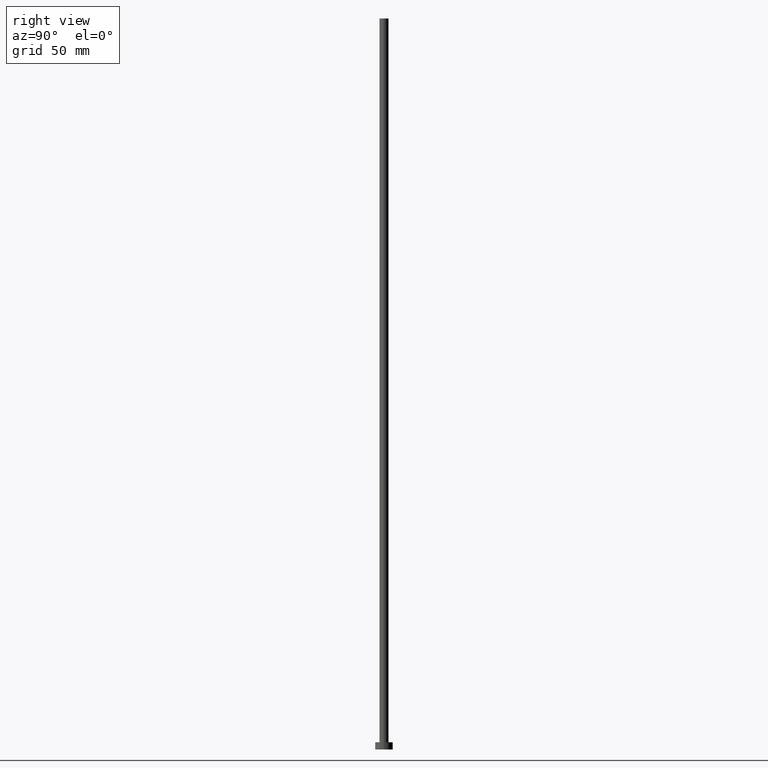
[diagram: clean part render]
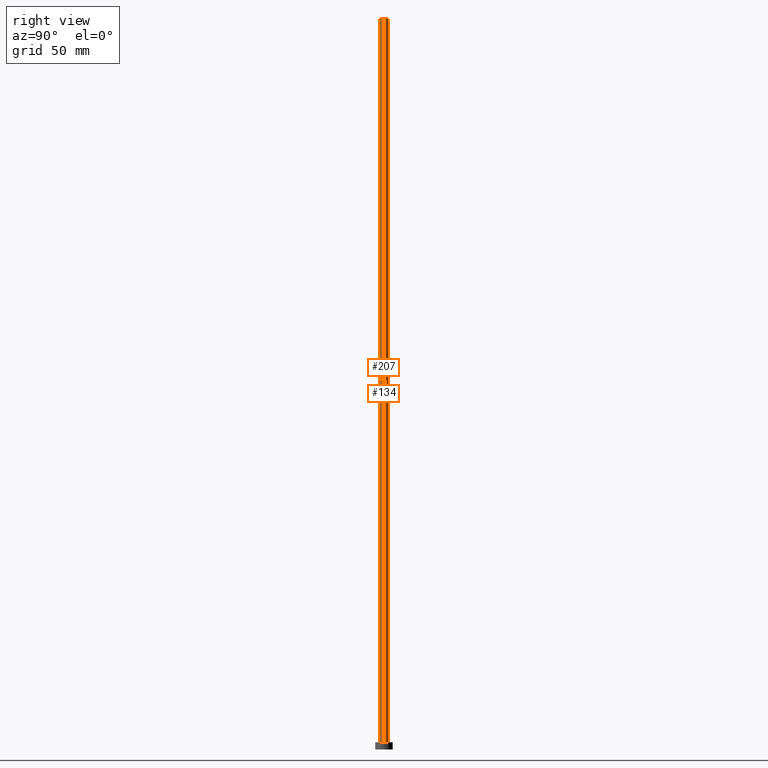
[diagram: same view with one multi-face feature highlighted, each face labeled with its STEP entity id]
A machine part, right view. The highlighted faces form ONE feature: a constant-radius fillet chain: 2 tangent blend faces with common blend radius 3.1 mm. The faces share edges in the B-rep.
Their STEP definitions:
[1] entity #134 (Cylinder):
#5 = EDGE_CURVE ( 'NONE', #193, #74, #104, .T. ) ;
#8 = DIRECTION ( 'NONE',  ( -0.000000000000000000, -0.000000000000000000, -1.000000000000000000 ) ) ;
#12 = AXIS2_PLACEMENT_3D ( 'NONE', #114, #54, #184 ) ;
#13 = CARTESIAN_POINT ( 'NONE',  ( 3.100000000000000089, 3.796405077356794918E-16, 500.0000000000000000 ) ) ;
#19 = ORIENTED_EDGE ( 'NONE', *, *, #117, .T. ) ;
#30 = VECTOR ( 'NONE', #8, 1000.000000000000000 ) ;
#43 = DIRECTION ( 'NONE',  ( -0.000000000000000000, -0.000000000000000000, -1.000000000000000000 ) ) ;
#54 = DIRECTION ( 'NONE',  ( 0.000000000000000000, 0.000000000000000000, 1.000000000000000000 ) ) ;
#55 = CIRCLE ( 'NONE', #12, 3.100000000000000089 ) ;
#63 = FACE_OUTER_BOUND ( 'NONE', #138, .T. ) ;
#64 = CARTESIAN_POINT ( 'NONE',  ( 3.100000000000000089, 3.796405077356794918E-16, 500.0000000000000000 ) ) ;
#73 = VECTOR ( 'NONE', #242, 1000.000000000000000 ) ;
#74 = VERTEX_POINT ( 'NONE', #238 ) ;
#77 = CARTESIAN_POINT ( 'NONE',  ( 0.000000000000000000, 0.000000000000000000, 500.0000000000000000 ) ) ;
#80 = LINE ( 'NONE', #115, #30 ) ;
#81 = CIRCLE ( 'NONE', #202, 3.100000000000000089 ) ;
#90 = CARTESIAN_POINT ( 'NONE',  ( 0.000000000000000000, 0.000000000000000000, 500.0000000000000000 ) ) ;
#96 = EDGE_CURVE ( 'NONE', #193, #208, #81, .T. ) ;
#104 = LINE ( 'NONE', #64, #73 ) ;
#106 = EDGE_CURVE ( 'NONE', #208, #119, #80, .T. ) ;
#112 = DIRECTION ( 'NONE',  ( 0.000000000000000000, 0.000000000000000000, 1.000000000000000000 ) ) ;
#114 = CARTESIAN_POINT ( 'NONE',  ( 0.000000000000000000, 0.000000000000000000, 5.000000000000000000 ) ) ;
#115 = CARTESIAN_POINT ( 'NONE',  ( -3.100000000000000089, 0.000000000000000000, 500.0000000000000000 ) ) ;
#117 = EDGE_CURVE ( 'NONE', #74, #119, #55, .T. ) ;
#119 = VERTEX_POINT ( 'NONE', #230 ) ;
#121 = CYLINDRICAL_SURFACE ( 'NONE', #149, 3.100000000000000089 ) ;
#134 = ADVANCED_FACE ( 'NONE', ( #63 ), #121, .T. ) ;
#138 = EDGE_LOOP ( 'NONE', ( #168, #195, #19, #140 ) ) ;
#140 = ORIENTED_EDGE ( 'NONE', *, *, #106, .F. ) ;
#149 = AXIS2_PLACEMENT_3D ( 'NONE', #77, #43, #159 ) ;
#159 = DIRECTION ( 'NONE',  ( -1.000000000000000000, 0.000000000000000000, 0.000000000000000000 ) ) ;
#168 = ORIENTED_EDGE ( 'NONE', *, *, #96, .F. ) ;
#176 = CARTESIAN_POINT ( 'NONE',  ( -3.100000000000000089, 0.000000000000000000, 500.0000000000000000 ) ) ;
#184 = DIRECTION ( 'NONE',  ( 1.000000000000000000, 0.000000000000000000, 0.000000000000000000 ) ) ;
#193 = VERTEX_POINT ( 'NONE', #13 ) ;
#195 = ORIENTED_EDGE ( 'NONE', *, *, #5, .T. ) ;
#202 = AXIS2_PLACEMENT_3D ( 'NONE', #90, #112, #222 ) ;
#208 = VERTEX_POINT ( 'NONE', #176 ) ;
#222 = DIRECTION ( 'NONE',  ( 1.000000000000000000, 0.000000000000000000, 0.000000000000000000 ) ) ;
#230 = CARTESIAN_POINT ( 'NONE',  ( -3.100000000000000089, 0.000000000000000000, 5.000000000000000000 ) ) ;
#238 = CARTESIAN_POINT ( 'NONE',  ( 3.100000000000000089, 3.796405077356794918E-16, 5.000000000000000000 ) ) ;
#242 = DIRECTION ( 'NONE',  ( -0.000000000000000000, -0.000000000000000000, -1.000000000000000000 ) ) ;
[2] entity #207 (Cylinder):
#5 = EDGE_CURVE ( 'NONE', #193, #74, #104, .T. ) ;
#8 = DIRECTION ( 'NONE',  ( -0.000000000000000000, -0.000000000000000000, -1.000000000000000000 ) ) ;
#11 = ORIENTED_EDGE ( 'NONE', *, *, #5, .F. ) ;
#13 = CARTESIAN_POINT ( 'NONE',  ( 3.100000000000000089, 3.796405077356794918E-16, 500.0000000000000000 ) ) ;
#28 = AXIS2_PLACEMENT_3D ( 'NONE', #38, #135, #209 ) ;
#30 = VECTOR ( 'NONE', #8, 1000.000000000000000 ) ;
#32 = DIRECTION ( 'NONE',  ( -0.000000000000000000, -0.000000000000000000, -1.000000000000000000 ) ) ;
#38 = CARTESIAN_POINT ( 'NONE',  ( 0.000000000000000000, 0.000000000000000000, 5.000000000000000000 ) ) ;
#39 = EDGE_LOOP ( 'NONE', ( #11, #142, #189, #211 ) ) ;
#58 = DIRECTION ( 'NONE',  ( -1.000000000000000000, 0.000000000000000000, 0.000000000000000000 ) ) ;
#60 = FACE_OUTER_BOUND ( 'NONE', #39, .T. ) ;
#64 = CARTESIAN_POINT ( 'NONE',  ( 3.100000000000000089, 3.796405077356794918E-16, 500.0000000000000000 ) ) ;
#67 = AXIS2_PLACEMENT_3D ( 'NONE', #85, #86, #163 ) ;
#69 = EDGE_CURVE ( 'NONE', #208, #193, #126, .T. ) ;
#73 = VECTOR ( 'NONE', #242, 1000.000000000000000 ) ;
#74 = VERTEX_POINT ( 'NONE', #238 ) ;
#80 = LINE ( 'NONE', #115, #30 ) ;
#83 = CIRCLE ( 'NONE', #28, 3.100000000000000089 ) ;
#85 = CARTESIAN_POINT ( 'NONE',  ( 0.000000000000000000, 0.000000000000000000, 500.0000000000000000 ) ) ;
#86 = DIRECTION ( 'NONE',  ( 0.000000000000000000, 0.000000000000000000, 1.000000000000000000 ) ) ;
#104 = LINE ( 'NONE', #64, #73 ) ;
#106 = EDGE_CURVE ( 'NONE', #208, #119, #80, .T. ) ;
#115 = CARTESIAN_POINT ( 'NONE',  ( -3.100000000000000089, 0.000000000000000000, 500.0000000000000000 ) ) ;
#119 = VERTEX_POINT ( 'NONE', #230 ) ;
#126 = CIRCLE ( 'NONE', #67, 3.100000000000000089 ) ;
#132 = CYLINDRICAL_SURFACE ( 'NONE', #162, 3.100000000000000089 ) ;
#135 = DIRECTION ( 'NONE',  ( 0.000000000000000000, 0.000000000000000000, 1.000000000000000000 ) ) ;
#142 = ORIENTED_EDGE ( 'NONE', *, *, #69, .F. ) ;
#156 = CARTESIAN_POINT ( 'NONE',  ( 0.000000000000000000, 0.000000000000000000, 500.0000000000000000 ) ) ;
#162 = AXIS2_PLACEMENT_3D ( 'NONE', #156, #32, #58 ) ;
#163 = DIRECTION ( 'NONE',  ( 1.000000000000000000, 0.000000000000000000, 0.000000000000000000 ) ) ;
#176 = CARTESIAN_POINT ( 'NONE',  ( -3.100000000000000089, 0.000000000000000000, 500.0000000000000000 ) ) ;
#189 = ORIENTED_EDGE ( 'NONE', *, *, #106, .T. ) ;
#193 = VERTEX_POINT ( 'NONE', #13 ) ;
#207 = ADVANCED_FACE ( 'NONE', ( #60 ), #132, .T. ) ;
#208 = VERTEX_POINT ( 'NONE', #176 ) ;
#209 = DIRECTION ( 'NONE',  ( 1.000000000000000000, 0.000000000000000000, 0.000000000000000000 ) ) ;
#211 = ORIENTED_EDGE ( 'NONE', *, *, #252, .T. ) ;
#230 = CARTESIAN_POINT ( 'NONE',  ( -3.100000000000000089, 0.000000000000000000, 5.000000000000000000 ) ) ;
#238 = CARTESIAN_POINT ( 'NONE',  ( 3.100000000000000089, 3.796405077356794918E-16, 5.000000000000000000 ) ) ;
#242 = DIRECTION ( 'NONE',  ( -0.000000000000000000, -0.000000000000000000, -1.000000000000000000 ) ) ;
#252 = EDGE_CURVE ( 'NONE', #119, #74, #83, .T. ) ;